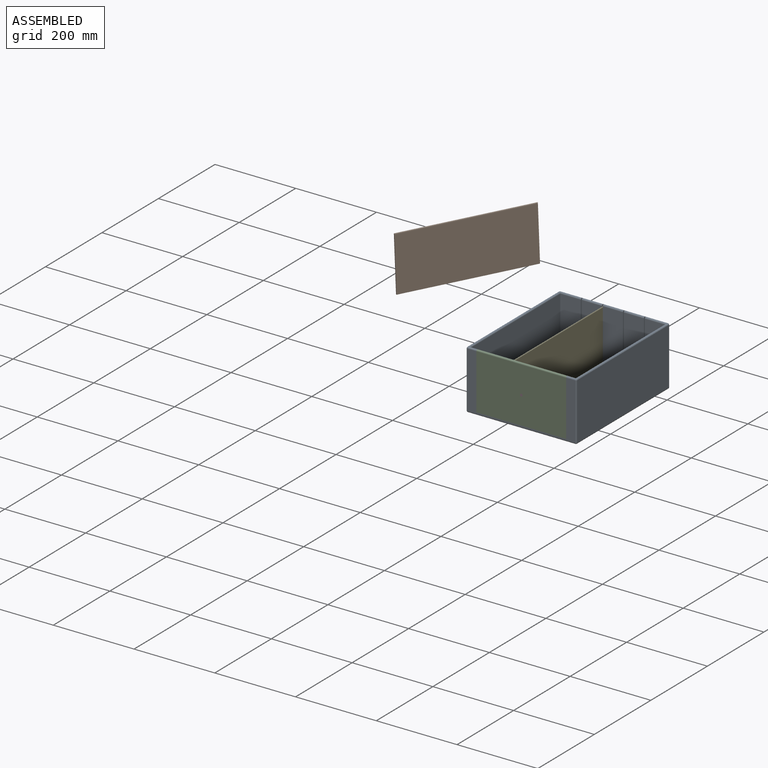
[diagram: assembled view]
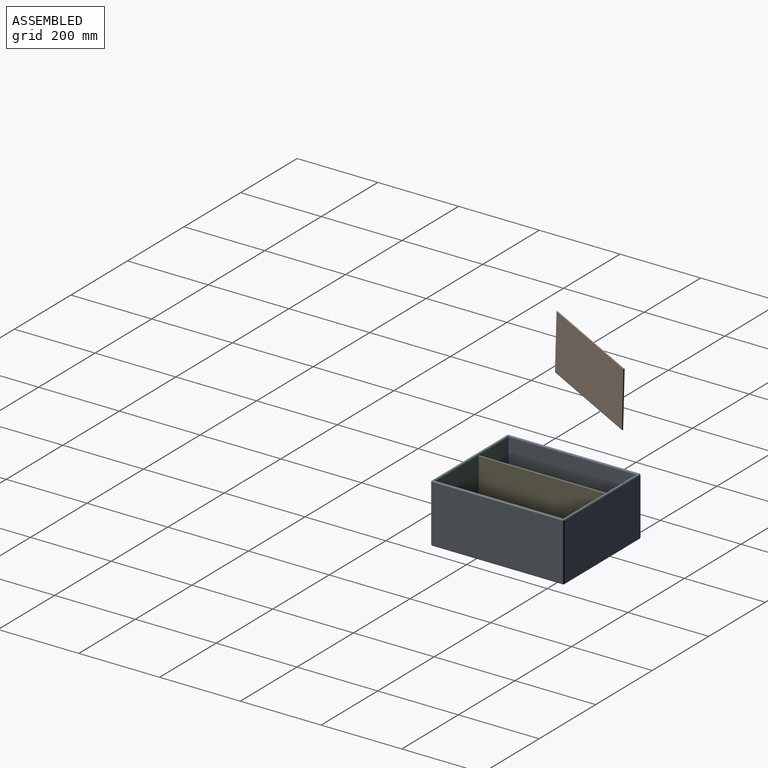
[diagram: assembled view, second angle]
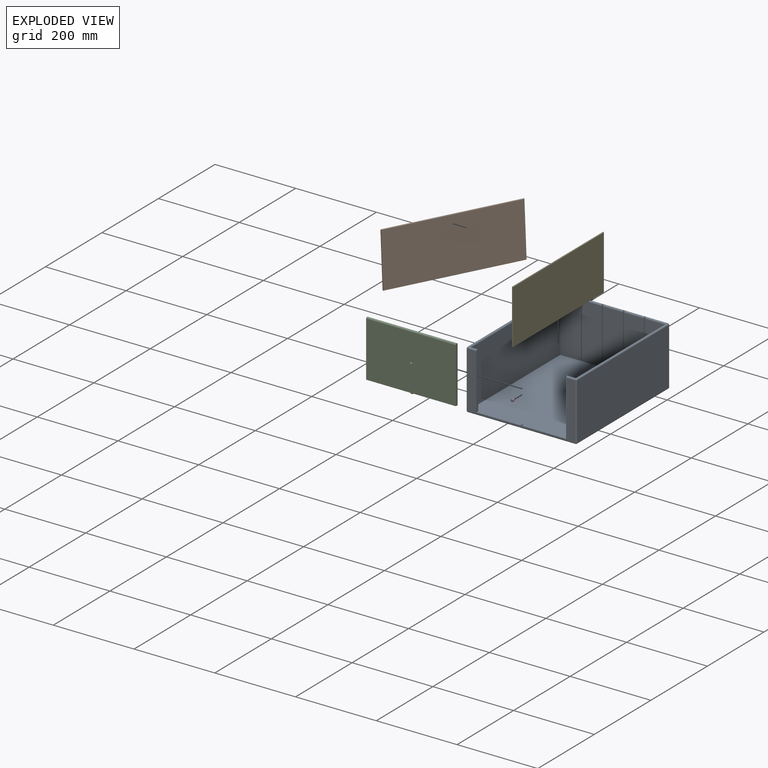
[diagram: exploded view]
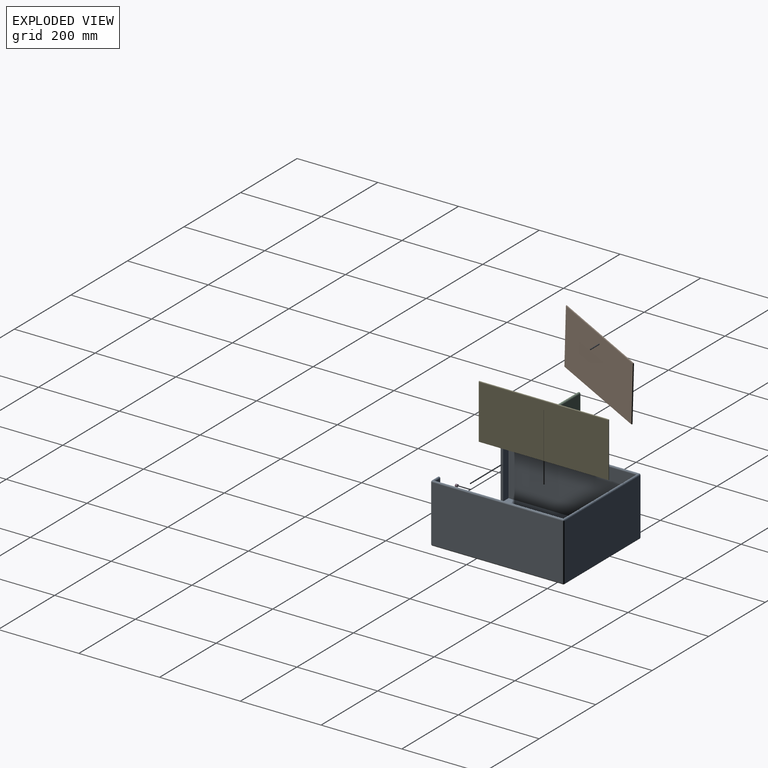
[diagram: exploded view, second angle]
ASSEMBLY  parts=5 mates=7
PART A: 55 faces, bbox 273.1x330.2x146.1 mm
  f0: plane 136.53x50.8mm, normal (0,-1,0), area 6935.5mm2, adj f4,f5,f14,f53
  f1: plane 136.53x49.53mm, normal (0,-1,0), area 6762.1mm2, adj f4,f5,f46,f50
  f2: plane 136.53x49.53mm, normal (0,-1,0), area 6762.1mm2, adj f4,f5,f47,f52
  f3: plane 136.53x49.53mm, normal (0,-1,0), area 6762.1mm2, adj f4,f5,f44,f49
  f4: cylinder r=3.17mm len=266.7mm, axis (1,0,0), area 2582.9mm2, adj f0,f1,f2,f3,f7,f13,f25,f26
  f5: plane 327.66x260.35mm, normal (0,0,1), area 84091.8mm2, adj f0,f1,f2,f3,f6,f9,f12,f13
  f6: plane 136.53x19.05mm, normal (0,1,0), area 2600.8mm2, adj f5,f14,f16,f18
  f7: plane 266.7x139.7mm, normal (0,1,0), area 37258mm2, adj f4,f21,f22,f29
  f8: plane 323.85x139.7mm, normal (-1,0,0), area 45241.8mm2, adj f21,f23,f24,f25
  f9: plane 266.7x139.7mm, normal (0,-1,0), area 6915.3mm2, adj f5,f16,f17,f18,f24,f31,f35,f36
  f10: plane 323.85x139.7mm, normal (1,0,0), area 45241.8mm2, adj f29,f30,f34,f35
  f11: plane 323.85x266.7mm, normal (0,0,-1), area 86370.8mm2, adj f22,f23,f30,f31
  f12: plane 317.5x136.53mm, normal (-1,0,0), area 43346.7mm2, adj f5,f13,f15,f34
  f13: plane 136.53x50.8mm, normal (0,-1,0), area 6935.5mm2, adj f4,f5,f12,f43
  f14: plane 317.5x136.53mm, normal (1,0,0), area 43346.7mm2, adj f0,f5,f6,f25
  f15: plane 136.53x19.05mm, normal (0,1,0), area 2600.8mm2, adj f5,f12,f17,f36
  f16: plane 139.7x6.35mm, normal (1,0,0), area 882.8mm2, adj f5,f6,f9,f18
  f17: plane 139.7x6.35mm, normal (-1,0,0), area 882.8mm2, adj f5,f9,f15,f36
  f18: cylinder r=3.17mm len=22.23mm, axis (-1,0,0), area 211.6mm2, adj f6,f9,f16,f20,f25
  f19: sphere r=3.17mm, area 15.8mm2, adj f21,f22,f23
  f20: sphere r=3.17mm, area 15.8mm2, adj f18,f24,f25
  f21: cylinder r=3.17mm len=139.7mm, axis (0,0,1), area 696.7mm2, adj f7,f8,f19,f26
  f22: cylinder r=3.17mm len=266.7mm, axis (-1,0,0), area 1330.1mm2, adj f7,f11,f19,f27
  f23: cylinder r=3.17mm len=323.85mm, axis (0,-1,0), area 1615.1mm2, adj f8,f11,f19,f28
  f24: cylinder r=3.17mm len=139.7mm, axis (0,0,-1), area 696.7mm2, adj f8,f9,f20,f28
  f25: cylinder r=3.17mm len=323.85mm, axis (0,1,0), area 3210.1mm2, adj f4,f8,f14,f18,f20,f26
  f26: sphere r=3.17mm, area 15.8mm2, adj f4,f21,f25
  f27: sphere r=3.17mm, area 15.8mm2, adj f22,f29,f30
  f28: sphere r=3.17mm, area 15.8mm2, adj f23,f24,f31
  f29: cylinder r=3.17mm len=139.7mm, axis (0,0,-1), area 696.7mm2, adj f7,f10,f27,f32
  f30: cylinder r=3.17mm len=323.85mm, axis (0,1,0), area 1615.1mm2, adj f10,f11,f27,f33
  f31: cylinder r=3.17mm len=266.7mm, axis (1,0,0), area 1330.1mm2, adj f9,f11,f28,f33
  f32: sphere r=3.17mm, area 15.8mm2, adj f4,f29,f34
  f33: sphere r=3.17mm, area 15.8mm2, adj f30,f31,f35
  f34: cylinder r=3.17mm len=323.85mm, axis (0,-1,0), area 3210.1mm2, adj f4,f10,f12,f32,f36,f37
  f35: cylinder r=3.17mm len=139.7mm, axis (0,0,1), area 696.7mm2, adj f9,f10,f33,f37
  f36: cylinder r=3.17mm len=22.23mm, axis (-1,0,0), area 211.6mm2, adj f9,f15,f17,f34,f37
  f37: sphere r=3.17mm, area 15.8mm2, adj f34,f35,f36
  f38: plane 5.08x2.54mm, normal (0,-1,0), area 12.9mm2, adj f5,f39,f41,f42
  f39: plane 3.81x2.54mm, normal (1,0,0), area 9.7mm2, adj f5,f38,f40,f42
  f40: plane 5.08x2.54mm, normal (0,1,0), area 12.9mm2, adj f5,f39,f41,f42
  f41: plane 3.81x2.54mm, normal (-1,0,0), area 9.7mm2, adj f5,f38,f40,f42
  f42: plane 5.08x3.81mm, normal (0,0,1), area 19.4mm2, adj f38,f39,f40,f41
  f43: plane 139.7x3.81mm, normal (-1,0,0), area 530.1mm2, adj f4,f5,f13,f45
  f44: plane 139.7x3.81mm, normal (1,0,0), area 530.1mm2, adj f3,f4,f5,f45
  f45: plane 139.64x2.54mm, normal (0,-1,0), area 354.7mm2, adj f4,f5,f43,f44
  f46: plane 139.7x3.81mm, normal (-1,0,0), area 530.1mm2, adj f1,f4,f5,f48
  f47: plane 139.7x3.81mm, normal (1,0,0), area 530.1mm2, adj f2,f4,f5,f48
  f48: plane 139.64x2.54mm, normal (0,-1,0), area 354.7mm2, adj f4,f5,f46,f47
  f49: plane 139.7x3.81mm, normal (-1,0,0), area 530.1mm2, adj f3,f4,f5,f51
  f50: plane 139.7x3.81mm, normal (1,0,0), area 530.1mm2, adj f1,f4,f5,f51
  f51: plane 139.64x2.54mm, normal (0,-1,0), area 354.7mm2, adj f4,f5,f49,f50
  f52: plane 139.7x3.81mm, normal (-1,0,0), area 530.1mm2, adj f2,f4,f5,f54
  f53: plane 139.7x3.81mm, normal (1,0,0), area 530.1mm2, adj f0,f4,f5,f54
  f54: plane 139.64x2.54mm, normal (0,-1,0), area 354.7mm2, adj f4,f5,f52,f53
PART B: 7 faces, bbox 321.3x2.5x135.7 mm
  f0: plane 135.73x2.54mm, normal (-1,0,0), area 343.1mm2, adj f1,f3,f4,f5,f6
  f1: plane 321.31x133.53mm, normal (0,-1,0), area 42903.8mm2, adj f0,f2,f4,f6
  f2: plane 135.73x2.54mm, normal (1,0,0), area 343.1mm2, adj f1,f3,f4,f5,f6
  f3: plane 321.31x133.53mm, normal (0,1,0), area 42903.8mm2, adj f0,f2,f4,f5
  f4: plane 321.31x2.54mm, normal (0,0,-1), area 816.1mm2, adj f0,f1,f2,f3
  f5: cylinder r=2.54mm len=321.31mm, axis (1,0,0), area 854.6mm2, adj f0,f2,f3,f6
  f6: cylinder r=2.54mm len=321.31mm, axis (-1,0,0), area 854.6mm2, adj f0,f1,f2,f5
PART C: 13 faces, bbox 222.3x6.4x142.2 mm
  f0: plane 222.25x136.53mm, normal (0,1,0), area 30342.7mm2, adj f1,f3,f4,f10
  f1: plane 139.7x6.35mm, normal (-1,0,0), area 882.8mm2, adj f0,f2,f4,f10
  f2: plane 222.25x136.53mm, normal (0,-1,0), area 30311mm2, adj f1,f3,f4,f10,f11
  f3: plane 139.7x6.35mm, normal (1,0,0), area 882.8mm2, adj f0,f2,f4,f10
  f4: plane 222.25x6.35mm, normal (0,0,-1), area 1391.9mm2, adj f0,f1,f2,f3,f5,f6,f7,f8
  f5: plane 5.08x2.54mm, normal (0,-1,0), area 12.9mm2, adj f4,f6,f8,f9
  f6: plane 3.81x2.54mm, normal (-1,0,0), area 9.7mm2, adj f4,f5,f7,f9
  f7: plane 5.08x2.54mm, normal (0,1,0), area 12.9mm2, adj f4,f6,f8,f9
  f8: plane 3.81x2.54mm, normal (1,0,0), area 9.7mm2, adj f4,f5,f7,f9
  f9: plane 5.08x3.81mm, normal (0,0,-1), area 19.4mm2, adj f5,f6,f7,f8
  f10: cylinder r=3.17mm len=222.25mm, axis (1,0,0), area 2216.8mm2, adj f0,f1,f2,f3
  f11: cylinder r=3.17mm len=6.35mm, axis (0,-1,0), area 101.3mm2, adj f2,f12
  f12: plane 6.35x6.35mm, normal (0,-1,0), area 31.7mm2, adj f11
PART D: 3 faces, bbox 6.4x5.1x6.4 mm
  f0: cylinder r=3.17mm len=6.35mm, axis (0,1,0), area 101.3mm2, adj f1,f2
  f1: plane 6.35x6.35mm, normal (0,-1,0), area 31.7mm2, adj f0
  f2: plane 6.35x6.35mm, normal (0,1,0), area 31.7mm2, adj f0
PART E: same geometry as B
PLACE A t=(90.13,-99.42,103.34)mm
PLACE B rot(axis=(0.02,-0.01,-1),120deg) t=(-300.32,177.62,327.76)mm
PLACE C t=(-14.74,-2.22,109.69)mm
PLACE D t=(-151.48,-94.34,177.95)mm
PLACE E rot(axis=(0,0,-1),90deg) t=(-178.78,228.24,109.69)mm
MATE planar E.f4 <-> A.f5  axis (0,0,-1) through (-177.51,67.59,109.69)mm
MATE planar A.f16 <-> C.f1  axis (1,0,0) through (-262.6,-96.24,179.2)mm
MATE slider D.f0 <-> C.f11  axis (0,-1,0) through (-151.48,-99.42,177.95)mm
MATE pin_slot C.f9 <-> A.f42  axis (0,0,-1) through (-151.48,-96.24,107.15)mm
MATE planar D.f0 <-> C.f11  axis (0,-1,0) through (-151.48,-99.42,177.95)mm
MATE planar E.f3 <-> A.f46  axis (1,0,0) through (-176.24,67.59,176.45)mm
MATE planar E.f0 <-> A.f54  axis (0,1,0) through (-177.51,228.24,177.24)mm
